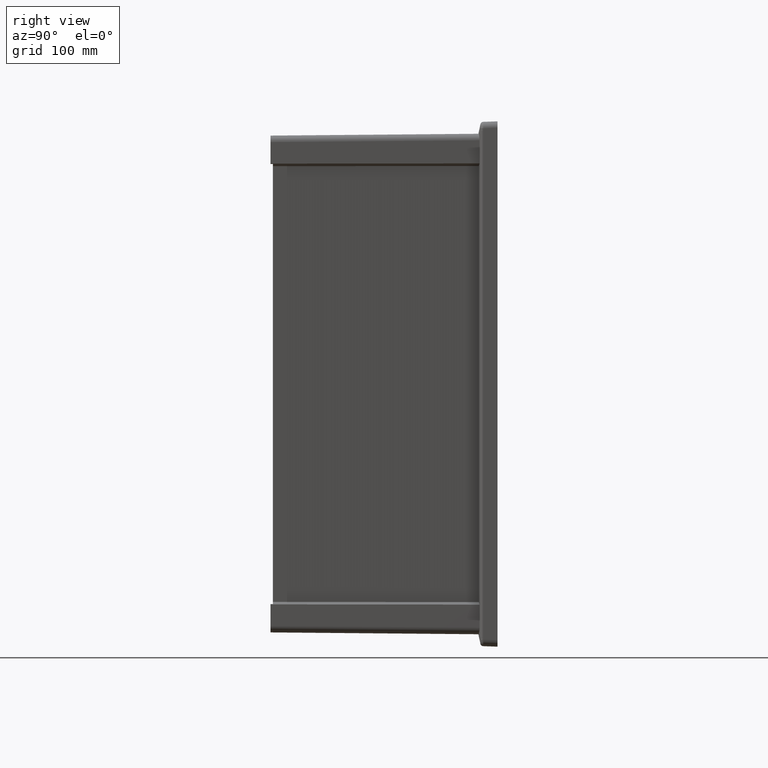
[diagram: clean part render]
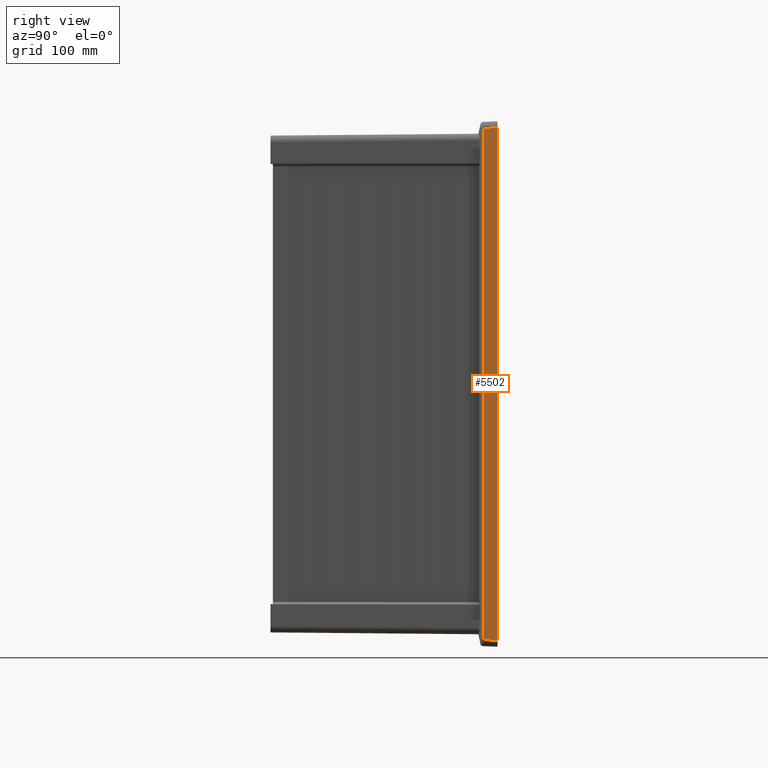
[diagram: same view with one face highlighted and labeled with its STEP entity id]
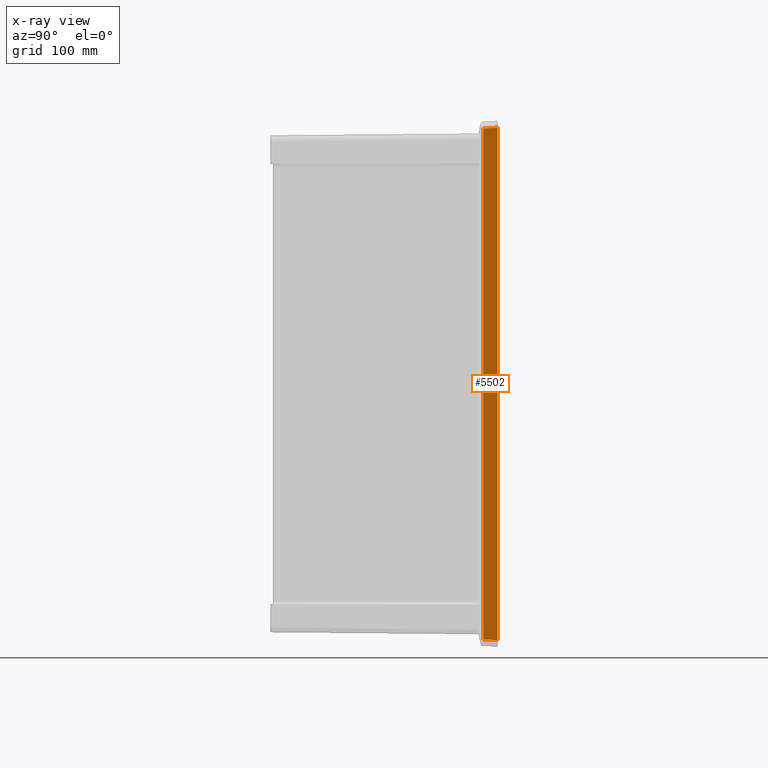
[diagram: x-ray of the same camera — body ghosted, the highlighted face saturated]
A machine part, right view. The second image highlights one B-rep face of the part: STEP entity #5502.
The next image is the same camera in x-ray: the body ghosted, the highlighted face saturated — about 0% of this face is hidden behind the body in this view.
In plain terms, the highlighted planar face has unit normal (0.9994, -0.0349, 0).
Its self-contained STEP definition (entity closure, byte-faithful):
#148 = VECTOR ( 'NONE', #8053, 1000.000000000000000 ) ;
#200 = CARTESIAN_POINT ( 'NONE',  ( 191.5797779445007300, -12.03358521635233900, -214.8641274405456200 ) ) ;
#220 = CARTESIAN_POINT ( 'NONE',  ( 191.4679087729555000, -15.23709914727159800, 215.4183904647804900 ) ) ;
#516 = DIRECTION ( 'NONE',  ( 0.03487826274237469700, 0.9987827659587182900, -0.03487826274237469700 ) ) ;
#583 = ORIENTED_EDGE ( 'NONE', *, *, #7056, .T. ) ;
#1211 = CARTESIAN_POINT ( 'NONE',  ( 191.5807825647508500, -12.00481665641615700, 215.5312642565758400 ) ) ;
#1587 = ORIENTED_EDGE ( 'NONE', *, *, #5042, .T. ) ;
#1598 = EDGE_LOOP ( 'NONE', ( #1587, #583, #5784, #9741, #9626, #11068 ) ) ;
#1865 = LINE ( 'NONE', #220, #148 ) ;
#2077 =( BOUNDED_CURVE ( )  B_SPLINE_CURVE ( 3, ( #7280, #7367, #200, #7797 ),
 .UNSPECIFIED., .F., .F. ) 
 B_SPLINE_CURVE_WITH_KNOTS ( ( 4, 4 ),
 ( 4.369878972383721000, 4.428979759933970900 ),
 .UNSPECIFIED. ) 
 CURVE ( )  GEOMETRIC_REPRESENTATION_ITEM ( )  RATIONAL_B_SPLINE_CURVE ( ( 1.000000000000000000, 0.9997089459231631700, 0.9997089459231631700, 1.000000000000000000 ) ) 
 REPRESENTATION_ITEM ( '' )  );
#2244 = PLANE ( 'NONE',  #8913 ) ;
#2874 = FACE_OUTER_BOUND ( 'NONE', #1598, .T. ) ;
#2911 = EDGE_CURVE ( 'NONE', #5598, #6086, #5332, .T. ) ;
#3087 = VERTEX_POINT ( 'NONE', #7805 ) ;
#3296 = LINE ( 'NONE', #5991, #13875 ) ;
#3361 = DIRECTION ( 'NONE',  ( 0.03489949670250104600, 0.9993908270190956500, 0.0000000000000000000 ) ) ;
#3483 = EDGE_CURVE ( 'NONE', #12341, #3087, #2077, .T. ) ;
#3784 = CARTESIAN_POINT ( 'NONE',  ( 192.0000000000002800, 0.0000000000000000000, -221.4471312404302500 ) ) ;
#5042 = EDGE_CURVE ( 'NONE', #6086, #10521, #1865, .T. ) ;
#5332 = LINE ( 'NONE', #3784, #8566 ) ;
#5426 = CARTESIAN_POINT ( 'NONE',  ( 191.5792754149807700, -12.04797577896829900, 213.5380490082368100 ) ) ;
#5502 = ADVANCED_FACE ( 'NONE', ( #2874 ), #2244, .T. ) ;
#5598 = VERTEX_POINT ( 'NONE', #5949 ) ;
#5609 = DIRECTION ( 'NONE',  ( 0.9993908270190957600, -0.03489949670250105200, 0.0000000000000000000 ) ) ;
#5784 = ORIENTED_EDGE ( 'NONE', *, *, #6215, .T. ) ;
#5949 = CARTESIAN_POINT ( 'NONE',  ( 192.0000000000002800, 0.0000000000000000000, -215.9504816918252500 ) ) ;
#5991 = CARTESIAN_POINT ( 'NONE',  ( 192.0066866368644900, 0.1914802268545351100, -215.9571683286894500 ) ) ;
#6086 = VERTEX_POINT ( 'NONE', #12225 ) ;
#6162 =( BOUNDED_CURVE ( )  B_SPLINE_CURVE ( 3, ( #1211, #6517, #11922, #5426 ),
 .UNSPECIFIED., .F., .F. ) 
 B_SPLINE_CURVE_WITH_KNOTS ( ( 4, 4 ),
 ( 1.854205547245614900, 1.913306334795865900 ),
 .UNSPECIFIED. ) 
 CURVE ( )  GEOMETRIC_REPRESENTATION_ITEM ( )  RATIONAL_B_SPLINE_CURVE ( ( 1.000000000000000000, 0.9997089459231631700, 0.9997089459231631700, 1.000000000000000000 ) ) 
 REPRESENTATION_ITEM ( '' )  );
#6215 = EDGE_CURVE ( 'NONE', #13517, #12341, #11572, .T. ) ;
#6274 = CARTESIAN_POINT ( 'NONE',  ( 191.5792754149807700, -12.04797577896829900, -213.5380490082368400 ) ) ;
#6517 = CARTESIAN_POINT ( 'NONE',  ( 191.5797779445007300, -12.03358521635233900, 214.8641274405456400 ) ) ;
#7056 = EDGE_CURVE ( 'NONE', #10521, #13517, #6162, .T. ) ;
#7280 = CARTESIAN_POINT ( 'NONE',  ( 191.5792754149807700, -12.04797577896829900, -213.5380490082368400 ) ) ;
#7367 = CARTESIAN_POINT ( 'NONE',  ( 191.5792754149808000, -12.04797577896829700, -214.1995289236581400 ) ) ;
#7797 = CARTESIAN_POINT ( 'NONE',  ( 191.5807825647508500, -12.00481665641616000, -215.5312642565758100 ) ) ;
#7805 = CARTESIAN_POINT ( 'NONE',  ( 191.5807825647508500, -12.00481665641616000, -215.5312642565758100 ) ) ;
#8053 = DIRECTION ( 'NONE',  ( -0.03487826274237469700, -0.9987827659587182900, -0.03487826274237469700 ) ) ;
#8566 = VECTOR ( 'NONE', #9315, 1000.000000000000000 ) ;
#8913 = AXIS2_PLACEMENT_3D ( 'NONE', #11197, #5609, #3361 ) ;
#9315 = DIRECTION ( 'NONE',  ( 0.0000000000000000000, -0.0000000000000000000, 1.000000000000000000 ) ) ;
#9355 = VECTOR ( 'NONE', #12547, 1000.000000000000000 ) ;
#9626 = ORIENTED_EDGE ( 'NONE', *, *, #13886, .T. ) ;
#9741 = ORIENTED_EDGE ( 'NONE', *, *, #3483, .T. ) ;
#10466 = CARTESIAN_POINT ( 'NONE',  ( 191.5807825647508500, -12.00481665641615700, 215.5312642565758400 ) ) ;
#10521 = VERTEX_POINT ( 'NONE', #10466 ) ;
#11068 = ORIENTED_EDGE ( 'NONE', *, *, #2911, .T. ) ;
#11197 = CARTESIAN_POINT ( 'NONE',  ( 192.0000000000002800, 0.0000000000000000000, -221.4471312404302500 ) ) ;
#11572 = LINE ( 'NONE', #12413, #9355 ) ;
#11812 = CARTESIAN_POINT ( 'NONE',  ( 191.5792754149807700, -12.04797577896829900, 213.5380490082368100 ) ) ;
#11922 = CARTESIAN_POINT ( 'NONE',  ( 191.5792754149808000, -12.04797577896829700, 214.1995289236581400 ) ) ;
#12225 = CARTESIAN_POINT ( 'NONE',  ( 192.0000000000002800, 0.0000000000000000000, 215.9504816918252700 ) ) ;
#12341 = VERTEX_POINT ( 'NONE', #6274 ) ;
#12413 = CARTESIAN_POINT ( 'NONE',  ( 191.5792754149807700, -12.04797577896829900, -221.4471312404302500 ) ) ;
#12547 = DIRECTION ( 'NONE',  ( 0.0000000000000000000, 0.0000000000000000000, -1.000000000000000000 ) ) ;
#13517 = VERTEX_POINT ( 'NONE', #11812 ) ;
#13875 = VECTOR ( 'NONE', #516, 1000.000000000000000 ) ;
#13886 = EDGE_CURVE ( 'NONE', #3087, #5598, #3296, .T. ) ;